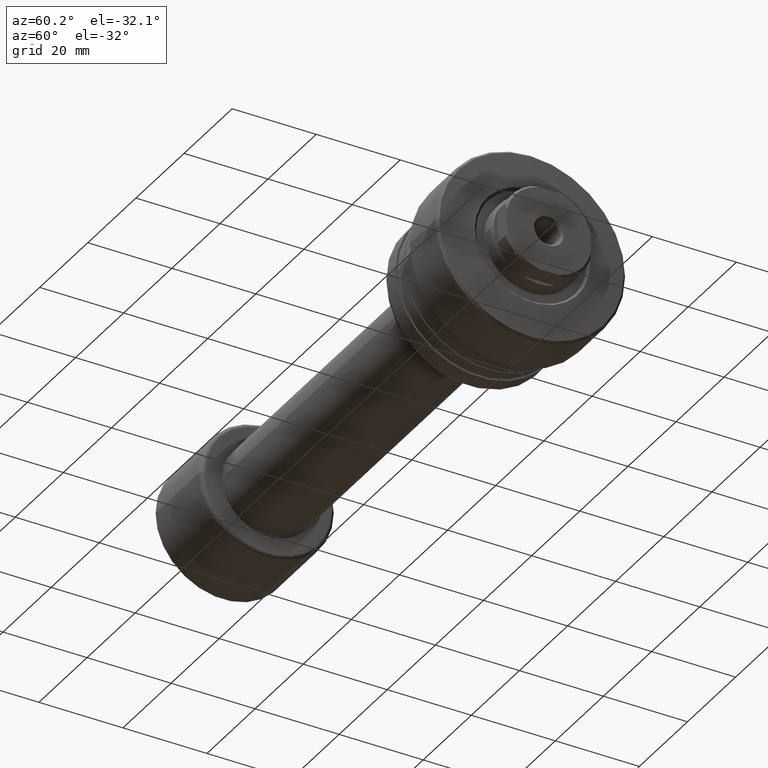
[diagram: clean part render]
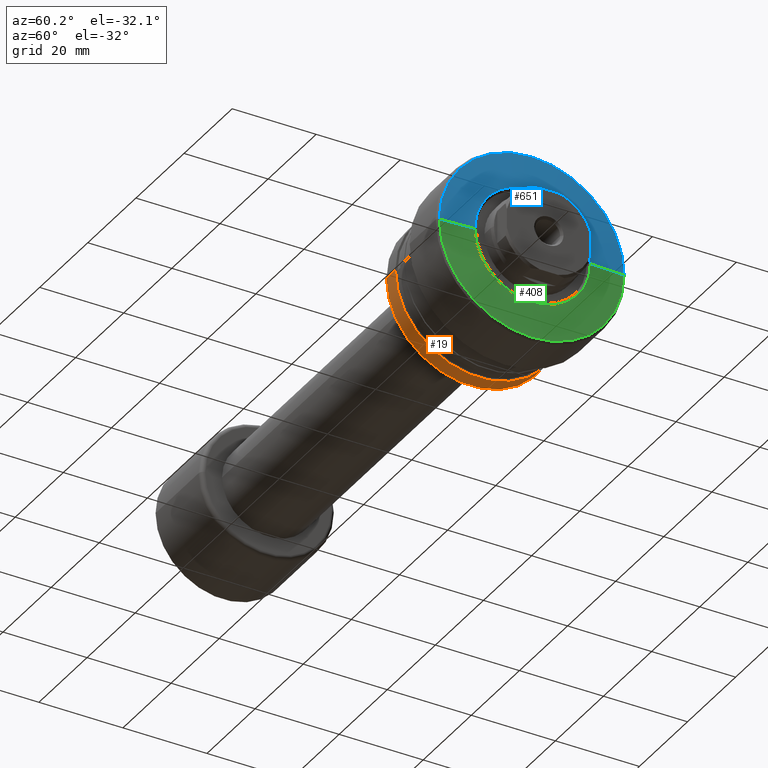
[diagram: same view with three faces highlighted in distinct colors, each labeled with its STEP entity id]
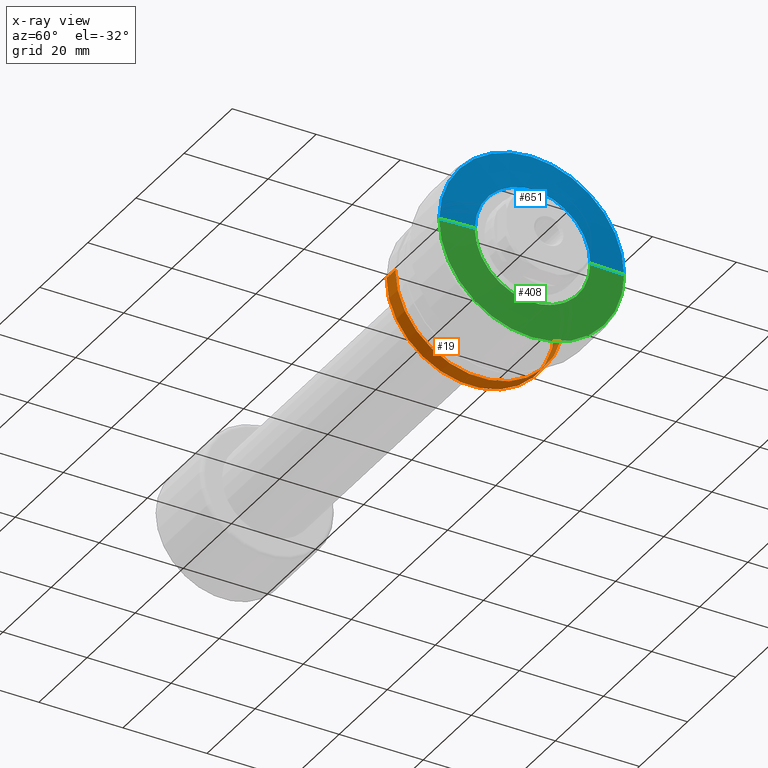
[diagram: x-ray of the same camera — body ghosted, the three highlighted faces saturated]
A machine part, auxiliary view with three faces highlighted in distinct colors.
The next image is the same camera in x-ray (body ghosted, the three faces saturated) — at least one of them is partly hidden behind the body in this view.
Their STEP definitions:

[orange] entity #19 — the highlighted cylindrical surface (partial cylindrical patch) has radius 20 mm, axis along (-1, 0, 0).
#19 = ADVANCED_FACE ( 'NONE', ( #1871 ), #1273, .T. ) ;
#37 = CARTESIAN_POINT ( 'NONE',  ( -30.28002276692735251, -19.99999999999999645, 0.000000000000000000 ) ) ;
#49 = AXIS2_PLACEMENT_3D ( 'NONE', #186, #2257, #2269 ) ;
#97 = AXIS2_PLACEMENT_3D ( 'NONE', #640, #614, #1783 ) ;
#186 = CARTESIAN_POINT ( 'NONE',  ( -30.28002276692732408, 0.000000000000000000, 0.000000000000000000 ) ) ;
#256 = LINE ( 'NONE', #2098, #741 ) ;
#282 = EDGE_CURVE ( 'NONE', #1953, #288, #256, .T. ) ;
#288 = VERTEX_POINT ( 'NONE', #2281 ) ;
#293 = CARTESIAN_POINT ( 'NONE',  ( -26.50000000000018119, -20.00000000000000355, 2.449293598294706513E-15 ) ) ;
#302 = ORIENTED_EDGE ( 'NONE', *, *, #282, .F. ) ;
#527 = CARTESIAN_POINT ( 'NONE',  ( -22.80878161770232637, 19.99999999999998224, 2.449293598294706119E-15 ) ) ;
#609 = ORIENTED_EDGE ( 'NONE', *, *, #1867, .T. ) ;
#614 = DIRECTION ( 'NONE',  ( -1.000000000000000000, 1.333885945136072597E-15, -0.000000000000000000 ) ) ;
#640 = CARTESIAN_POINT ( 'NONE',  ( -26.50000000000015277, -5.042119241098522056E-15, 0.000000000000000000 ) ) ;
#729 = ORIENTED_EDGE ( 'NONE', *, *, #1698, .F. ) ;
#734 = DIRECTION ( 'NONE',  ( -1.000000000000000000, 1.333885945136072597E-15, -0.000000000000000000 ) ) ;
#741 = VECTOR ( 'NONE', #960, 1000.000000000000000 ) ;
#960 = DIRECTION ( 'NONE',  ( -1.000000000000000000, 1.333885945136072597E-15, -0.000000000000000000 ) ) ;
#1099 = CIRCLE ( 'NONE', #97, 20.00000000000000000 ) ;
#1131 = AXIS2_PLACEMENT_3D ( 'NONE', #1245, #1994, #1805 ) ;
#1145 = LINE ( 'NONE', #37, #1462 ) ;
#1222 = VERTEX_POINT ( 'NONE', #2087 ) ;
#1238 = ORIENTED_EDGE ( 'NONE', *, *, #1567, .T. ) ;
#1245 = CARTESIAN_POINT ( 'NONE',  ( -22.80878161770235479, -9.965783561673463636E-15, 0.000000000000000000 ) ) ;
#1273 = CYLINDRICAL_SURFACE ( 'NONE', #49, 19.99999999999999645 ) ;
#1440 = EDGE_LOOP ( 'NONE', ( #302, #609, #1238, #729 ) ) ;
#1462 = VECTOR ( 'NONE', #734, 1000.000000000000000 ) ;
#1567 = EDGE_CURVE ( 'NONE', #1222, #1675, #1145, .T. ) ;
#1675 = VERTEX_POINT ( 'NONE', #293 ) ;
#1698 = EDGE_CURVE ( 'NONE', #288, #1675, #1099, .T. ) ;
#1783 = DIRECTION ( 'NONE',  ( -1.387778780781445676E-15, -1.000000000000000000, 0.000000000000000000 ) ) ;
#1805 = DIRECTION ( 'NONE',  ( -1.387778780781446267E-15, -1.000000000000000000, 0.000000000000000000 ) ) ;
#1867 = EDGE_CURVE ( 'NONE', #1953, #1222, #2204, .T. ) ;
#1871 = FACE_OUTER_BOUND ( 'NONE', #1440, .T. ) ;
#1953 = VERTEX_POINT ( 'NONE', #527 ) ;
#1994 = DIRECTION ( 'NONE',  ( -1.000000000000000000, 1.333885945136072597E-15, -0.000000000000000000 ) ) ;
#2087 = CARTESIAN_POINT ( 'NONE',  ( -22.80878161770238322, -20.00000000000000355, 0.000000000000000000 ) ) ;
#2098 = CARTESIAN_POINT ( 'NONE',  ( -30.28002276692729566, 19.99999999999999645, 2.449293598294706119E-15 ) ) ;
#2204 = CIRCLE ( 'NONE', #1131, 19.99999999999999289 ) ;
#2257 = DIRECTION ( 'NONE',  ( -1.000000000000000000, 1.333885945136072597E-15, -0.000000000000000000 ) ) ;
#2269 = DIRECTION ( 'NONE',  ( -1.387778780781445873E-15, -1.000000000000000000, 0.000000000000000000 ) ) ;
#2281 = CARTESIAN_POINT ( 'NONE',  ( -26.50000000000012434, 19.99999999999999645, 0.000000000000000000 ) ) ;

[blue] entity #651 — the highlighted conical surface has half-angle 87.138 deg.
#8 = AXIS2_PLACEMENT_3D ( 'NONE', #36, #219, #995 ) ;
#36 = CARTESIAN_POINT ( 'NONE',  ( -1.100000000000642242, -3.892282224755411592E-14, 0.000000000000000000 ) ) ;
#66 = EDGE_CURVE ( 'NONE', #1663, #2103, #1133, .T. ) ;
#85 = CARTESIAN_POINT ( 'NONE',  ( -0.6874688084723873382, -13.74937616943899776, 0.000000000000000000 ) ) ;
#101 = EDGE_LOOP ( 'NONE', ( #399, #965, #494, #1167 ) ) ;
#197 = EDGE_CURVE ( 'NONE', #1663, #618, #427, .T. ) ;
#219 = DIRECTION ( 'NONE',  ( -1.000000000000000000, 1.333885945136072597E-15, -0.000000000000000000 ) ) ;
#399 = ORIENTED_EDGE ( 'NONE', *, *, #66, .T. ) ;
#401 = CARTESIAN_POINT ( 'NONE',  ( -1.100000000000612932, 21.99999999999989342, 2.694222958124168921E-15 ) ) ;
#427 = LINE ( 'NONE', #595, #2416 ) ;
#494 = ORIENTED_EDGE ( 'NONE', *, *, #1969, .F. ) ;
#595 = CARTESIAN_POINT ( 'NONE',  ( -1.100000000000671330, -21.99999999999997158, 0.000000000000000000 ) ) ;
#618 = VERTEX_POINT ( 'NONE', #764 ) ;
#629 = CONICAL_SURFACE ( 'NONE', #8, 21.99999999999993250, 1.520837931072924532 ) ;
#651 = ADVANCED_FACE ( 'NONE', ( #1154 ), #629, .T. ) ;
#710 = EDGE_CURVE ( 'NONE', #2103, #1410, #1165, .T. ) ;
#723 = CARTESIAN_POINT ( 'NONE',  ( -1.100000000000612932, 21.99999999999989342, 2.724839128102853891E-15 ) ) ;
#764 = CARTESIAN_POINT ( 'NONE',  ( -1.100000000000671330, -21.99999999999997158, 0.000000000000000000 ) ) ;
#927 = DIRECTION ( 'NONE',  ( -1.000000000000000000, 1.333885945136072597E-15, -0.000000000000000000 ) ) ;
#965 = ORIENTED_EDGE ( 'NONE', *, *, #710, .T. ) ;
#995 = DIRECTION ( 'NONE',  ( -1.330611757141304966E-15, -1.000000000000000000, 0.000000000000000000 ) ) ;
#1123 = CARTESIAN_POINT ( 'NONE',  ( -1.100000000000642242, -3.892282224755411592E-14, 0.000000000000000000 ) ) ;
#1133 = CIRCLE ( 'NONE', #1734, 13.74937616943895868 ) ;
#1154 = FACE_OUTER_BOUND ( 'NONE', #101, .T. ) ;
#1165 = LINE ( 'NONE', #401, #1408 ) ;
#1167 = ORIENTED_EDGE ( 'NONE', *, *, #197, .F. ) ;
#1324 = DIRECTION ( 'NONE',  ( -0.04993761694392286066, -0.9987523388778432043, 0.000000000000000000 ) ) ;
#1408 = VECTOR ( 'NONE', #1927, 999.9999999999998863 ) ;
#1410 = VERTEX_POINT ( 'NONE', #723 ) ;
#1455 = CIRCLE ( 'NONE', #1578, 21.99999999999993250 ) ;
#1578 = AXIS2_PLACEMENT_3D ( 'NONE', #1123, #927, #2441 ) ;
#1660 = CARTESIAN_POINT ( 'NONE',  ( -0.6874688084723690196, -3.947309180586395012E-14, 0.000000000000000000 ) ) ;
#1663 = VERTEX_POINT ( 'NONE', #85 ) ;
#1683 = DIRECTION ( 'NONE',  ( -1.000000000000000000, 1.333885945136072597E-15, -0.000000000000000000 ) ) ;
#1734 = AXIS2_PLACEMENT_3D ( 'NONE', #1660, #1683, #2381 ) ;
#1927 = DIRECTION ( 'NONE',  ( -0.04993761694392019612, 0.9987523388778434263, 1.223118854947683487E-16 ) ) ;
#1969 = EDGE_CURVE ( 'NONE', #618, #1410, #1455, .T. ) ;
#2049 = CARTESIAN_POINT ( 'NONE',  ( -0.6874688084723507009, 13.74937616943891783, 2.189017954870900343E-15 ) ) ;
#2103 = VERTEX_POINT ( 'NONE', #2049 ) ;
#2381 = DIRECTION ( 'NONE',  ( -1.332643495181402961E-15, -1.000000000000000000, 0.000000000000000000 ) ) ;
#2416 = VECTOR ( 'NONE', #1324, 1000.000000000000114 ) ;
#2441 = DIRECTION ( 'NONE',  ( -1.330611757141304966E-15, -1.000000000000000000, 0.000000000000000000 ) ) ;

[green] entity #408 — the highlighted conical surface has half-angle 87.138 deg.
#82 = EDGE_CURVE ( 'NONE', #1410, #618, #2011, .T. ) ;
#85 = CARTESIAN_POINT ( 'NONE',  ( -0.6874688084723873382, -13.74937616943899776, 0.000000000000000000 ) ) ;
#159 = AXIS2_PLACEMENT_3D ( 'NONE', #754, #173, #375 ) ;
#164 = AXIS2_PLACEMENT_3D ( 'NONE', #1958, #265, #2369 ) ;
#173 = DIRECTION ( 'NONE',  ( -1.000000000000000000, 1.333885945136072597E-15, -0.000000000000000000 ) ) ;
#197 = EDGE_CURVE ( 'NONE', #1663, #618, #427, .T. ) ;
#203 = ORIENTED_EDGE ( 'NONE', *, *, #82, .F. ) ;
#265 = DIRECTION ( 'NONE',  ( -1.000000000000000000, 1.333885945136072597E-15, -0.000000000000000000 ) ) ;
#375 = DIRECTION ( 'NONE',  ( -1.330611757141304966E-15, -1.000000000000000000, 0.000000000000000000 ) ) ;
#401 = CARTESIAN_POINT ( 'NONE',  ( -1.100000000000612932, 21.99999999999989342, 2.694222958124168921E-15 ) ) ;
#408 = ADVANCED_FACE ( 'NONE', ( #1624 ), #980, .T. ) ;
#427 = LINE ( 'NONE', #595, #2416 ) ;
#509 = CIRCLE ( 'NONE', #1972, 13.74937616943895868 ) ;
#595 = CARTESIAN_POINT ( 'NONE',  ( -1.100000000000671330, -21.99999999999997158, 0.000000000000000000 ) ) ;
#618 = VERTEX_POINT ( 'NONE', #764 ) ;
#710 = EDGE_CURVE ( 'NONE', #2103, #1410, #1165, .T. ) ;
#723 = CARTESIAN_POINT ( 'NONE',  ( -1.100000000000612932, 21.99999999999989342, 2.724839128102853891E-15 ) ) ;
#754 = CARTESIAN_POINT ( 'NONE',  ( -1.100000000000642242, -3.892282224755411592E-14, 0.000000000000000000 ) ) ;
#764 = CARTESIAN_POINT ( 'NONE',  ( -1.100000000000671330, -21.99999999999997158, 0.000000000000000000 ) ) ;
#957 = ORIENTED_EDGE ( 'NONE', *, *, #710, .F. ) ;
#967 = CARTESIAN_POINT ( 'NONE',  ( -0.6874688084723690196, -3.947309180586395012E-14, 0.000000000000000000 ) ) ;
#980 = CONICAL_SURFACE ( 'NONE', #164, 21.99999999999993250, 1.520837931072924532 ) ;
#1165 = LINE ( 'NONE', #401, #1408 ) ;
#1229 = EDGE_LOOP ( 'NONE', ( #957, #1404, #1516, #203 ) ) ;
#1324 = DIRECTION ( 'NONE',  ( -0.04993761694392286066, -0.9987523388778432043, 0.000000000000000000 ) ) ;
#1404 = ORIENTED_EDGE ( 'NONE', *, *, #2156, .T. ) ;
#1408 = VECTOR ( 'NONE', #1927, 999.9999999999998863 ) ;
#1410 = VERTEX_POINT ( 'NONE', #723 ) ;
#1516 = ORIENTED_EDGE ( 'NONE', *, *, #197, .T. ) ;
#1549 = DIRECTION ( 'NONE',  ( -1.332643495181402961E-15, -1.000000000000000000, 0.000000000000000000 ) ) ;
#1624 = FACE_OUTER_BOUND ( 'NONE', #1229, .T. ) ;
#1663 = VERTEX_POINT ( 'NONE', #85 ) ;
#1927 = DIRECTION ( 'NONE',  ( -0.04993761694392019612, 0.9987523388778434263, 1.223118854947683487E-16 ) ) ;
#1958 = CARTESIAN_POINT ( 'NONE',  ( -1.100000000000642242, -3.892282224755411592E-14, 0.000000000000000000 ) ) ;
#1972 = AXIS2_PLACEMENT_3D ( 'NONE', #967, #2142, #1549 ) ;
#2011 = CIRCLE ( 'NONE', #159, 21.99999999999993250 ) ;
#2049 = CARTESIAN_POINT ( 'NONE',  ( -0.6874688084723507009, 13.74937616943891783, 2.189017954870900343E-15 ) ) ;
#2103 = VERTEX_POINT ( 'NONE', #2049 ) ;
#2142 = DIRECTION ( 'NONE',  ( -1.000000000000000000, 1.333885945136072597E-15, -0.000000000000000000 ) ) ;
#2156 = EDGE_CURVE ( 'NONE', #2103, #1663, #509, .T. ) ;
#2369 = DIRECTION ( 'NONE',  ( -1.330611757141304966E-15, -1.000000000000000000, 0.000000000000000000 ) ) ;
#2416 = VECTOR ( 'NONE', #1324, 1000.000000000000114 ) ;